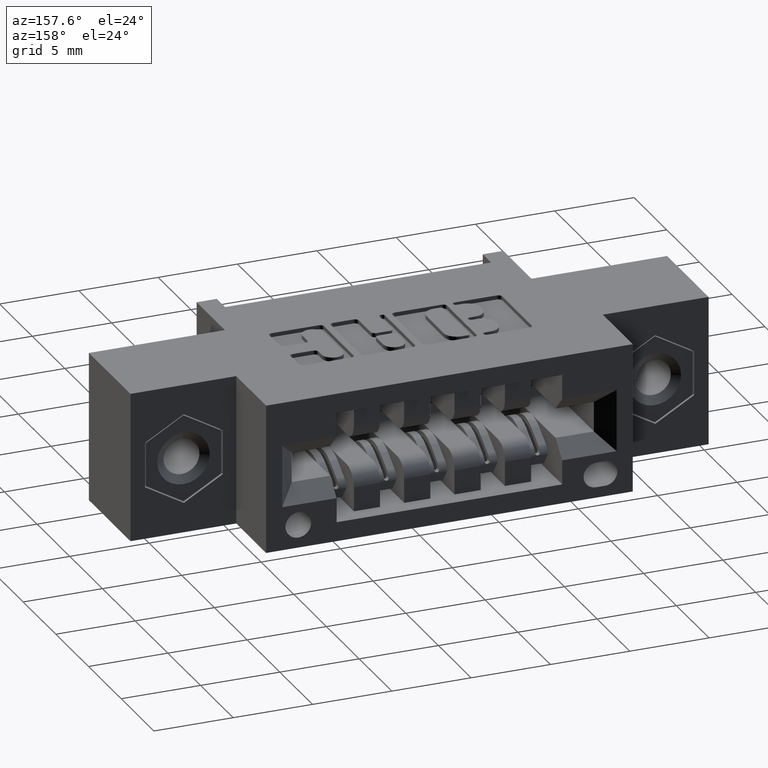
[diagram: clean part render]
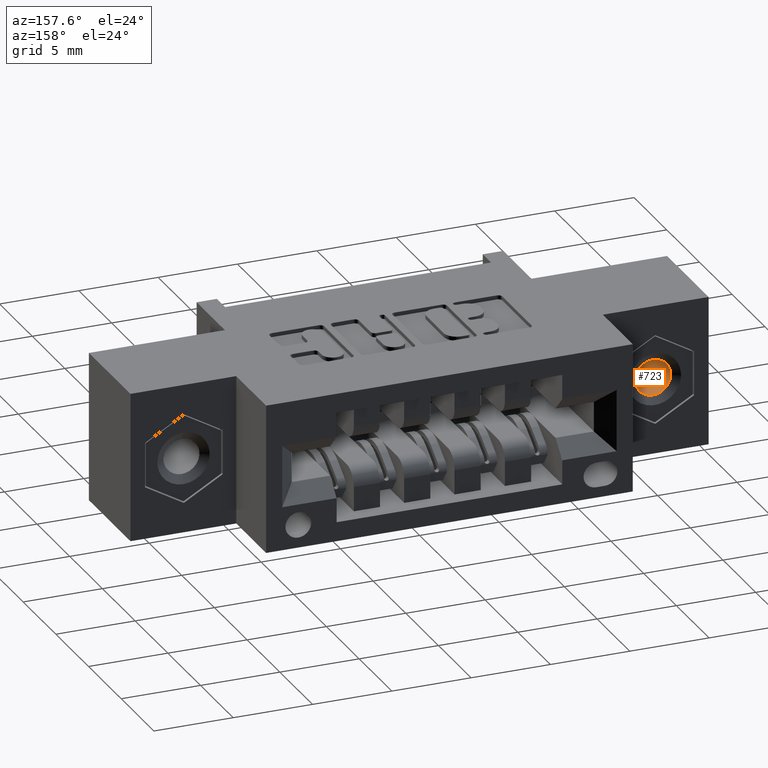
[diagram: same view with one face highlighted and labeled with its STEP entity id]
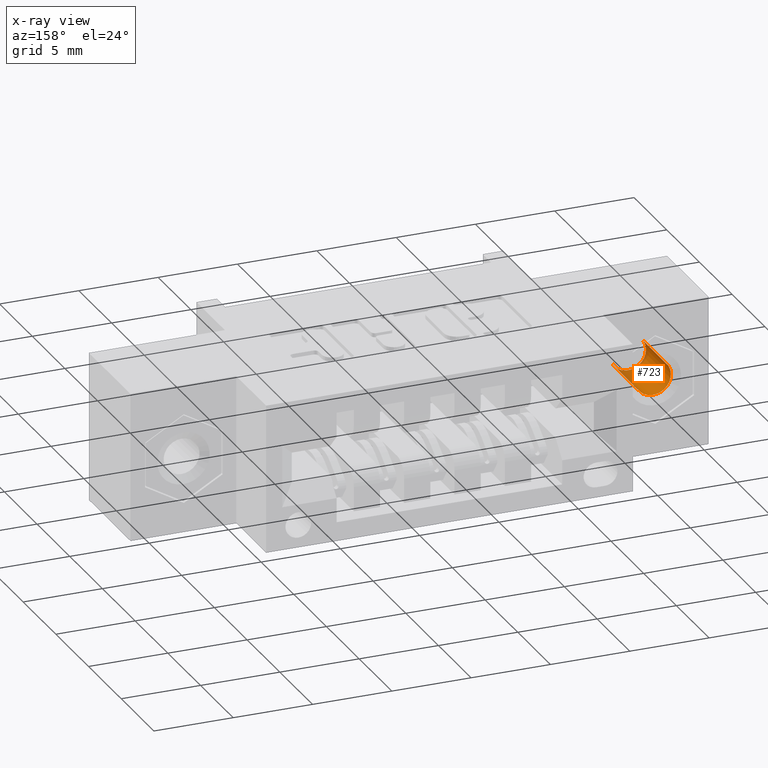
[diagram: x-ray of the same camera — body ghosted, the highlighted face saturated]
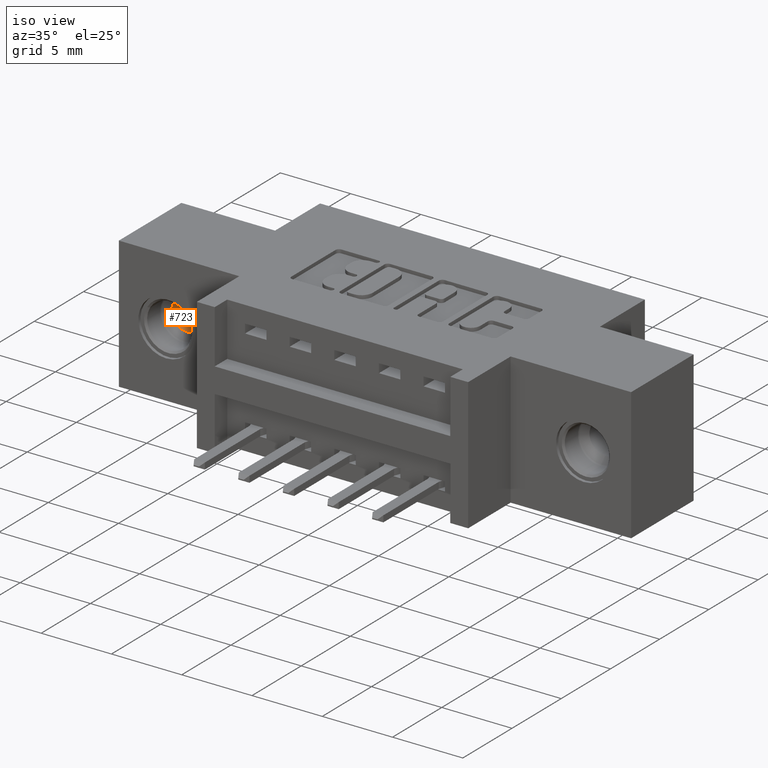
[diagram: same view with one face highlighted and labeled with its STEP entity id]
A machine part, auxiliary view. The second image highlights one B-rep face of the part: STEP entity #723.
The next image is the same camera in x-ray: the body ghosted, the highlighted face saturated — about 13% of this face is hidden behind the body in this view.
A second angle (iso view) of the same face is appended — the face is thin or edge-on in the first view.
In plain terms, the highlighted cylindrical surface (edge-blend (fillet) strip) has radius 1.1303 mm, axis along (0, 1, 0).
Its self-contained STEP definition (entity closure, byte-faithful):
#23 = EDGE_CURVE ( 'NONE', #3557, #2338, #4290, .T. ) ;
#592 = FACE_OUTER_BOUND ( 'NONE', #3221, .T. ) ;
#645 = DIRECTION ( 'NONE',  ( 0.0000000000000000000, -1.000000000000000000, 0.0000000000000000000 ) ) ;
#688 = ORIENTED_EDGE ( 'NONE', *, *, #8352, .F. ) ;
#723 = ADVANCED_FACE ( 'NONE', ( #592 ), #6459, .F. ) ;
#743 = CARTESIAN_POINT ( 'NONE',  ( 3.414809992080329023E-17, 0.0000000000000000000, -0.04449999857600012154 ) ) ;
#775 = VERTEX_POINT ( 'NONE', #3560 ) ;
#899 = CIRCLE ( 'NONE', #6894, 0.04449999857600019093 ) ;
#907 = AXIS2_PLACEMENT_3D ( 'NONE', #1457, #645, #932 ) ;
#932 = DIRECTION ( 'NONE',  ( 0.0000000000000000000, 0.0000000000000000000, -1.000000000000000000 ) ) ;
#1344 = DIRECTION ( 'NONE',  ( 0.0000000000000000000, 0.0000000000000000000, -1.000000000000000000 ) ) ;
#1457 = CARTESIAN_POINT ( 'NONE',  ( 3.414809992080329023E-17, 0.01183568134053416057, 6.829619984160658046E-17 ) ) ;
#1734 = ORIENTED_EDGE ( 'NONE', *, *, #23, .T. ) ;
#2338 = VERTEX_POINT ( 'NONE', #4495 ) ;
#2410 = DIRECTION ( 'NONE',  ( 0.0000000000000000000, 0.0000000000000000000, 1.000000000000000000 ) ) ;
#2817 = DIRECTION ( 'NONE',  ( 0.0000000000000000000, -1.000000000000000000, 0.0000000000000000000 ) ) ;
#2914 = CARTESIAN_POINT ( 'NONE',  ( 0.0000000000000000000, 0.1619999985760002259, 0.04449999857600019093 ) ) ;
#3221 = EDGE_LOOP ( 'NONE', ( #688, #1734, #8234, #3265 ) ) ;
#3265 = ORIENTED_EDGE ( 'NONE', *, *, #4484, .F. ) ;
#3313 = AXIS2_PLACEMENT_3D ( 'NONE', #9413, #8699, #1344 ) ;
#3557 = VERTEX_POINT ( 'NONE', #2914 ) ;
#3560 = CARTESIAN_POINT ( 'NONE',  ( 6.426318528224350477E-18, 0.1619999985760002259, -0.04449999857600014930 ) ) ;
#4290 = LINE ( 'NONE', #9461, #5083 ) ;
#4484 = EDGE_CURVE ( 'NONE', #775, #8751, #6475, .T. ) ;
#4495 = CARTESIAN_POINT ( 'NONE',  ( 3.959777800261932834E-17, 0.01183568134053416057, 0.04449999857600022563 ) ) ;
#4886 = DIRECTION ( 'NONE',  ( 0.0000000000000000000, -1.000000000000000000, 0.0000000000000000000 ) ) ;
#5083 = VECTOR ( 'NONE', #4886, 39.37007874015748143 ) ;
#5446 = CARTESIAN_POINT ( 'NONE',  ( 3.414809992080329023E-17, 0.01183568134053416057, -0.04449999857600012848 ) ) ;
#6049 = DIRECTION ( 'NONE',  ( -0.0000000000000000000, -1.000000000000000000, -0.0000000000000000000 ) ) ;
#6459 = CYLINDRICAL_SURFACE ( 'NONE', #3313, 0.04449999857600019093 ) ;
#6475 = LINE ( 'NONE', #743, #7605 ) ;
#6894 = AXIS2_PLACEMENT_3D ( 'NONE', #8389, #6049, #2410 ) ;
#7196 = CIRCLE ( 'NONE', #907, 0.04449999857600019787 ) ;
#7605 = VECTOR ( 'NONE', #2817, 39.37007874015748143 ) ;
#8234 = ORIENTED_EDGE ( 'NONE', *, *, #9266, .T. ) ;
#8352 = EDGE_CURVE ( 'NONE', #3557, #775, #899, .T. ) ;
#8389 = CARTESIAN_POINT ( 'NONE',  ( 0.0000000000000000000, 0.1619999985760002259, 0.0000000000000000000 ) ) ;
#8699 = DIRECTION ( 'NONE',  ( 0.0000000000000000000, -1.000000000000000000, 0.0000000000000000000 ) ) ;
#8751 = VERTEX_POINT ( 'NONE', #5446 ) ;
#9266 = EDGE_CURVE ( 'NONE', #2338, #8751, #7196, .T. ) ;
#9413 = CARTESIAN_POINT ( 'NONE',  ( 3.414809992080329023E-17, 0.0000000000000000000, 6.829619984160658046E-17 ) ) ;
#9461 = CARTESIAN_POINT ( 'NONE',  ( 3.959777800261932834E-17, 0.0000000000000000000, 0.04449999857600026032 ) ) ;